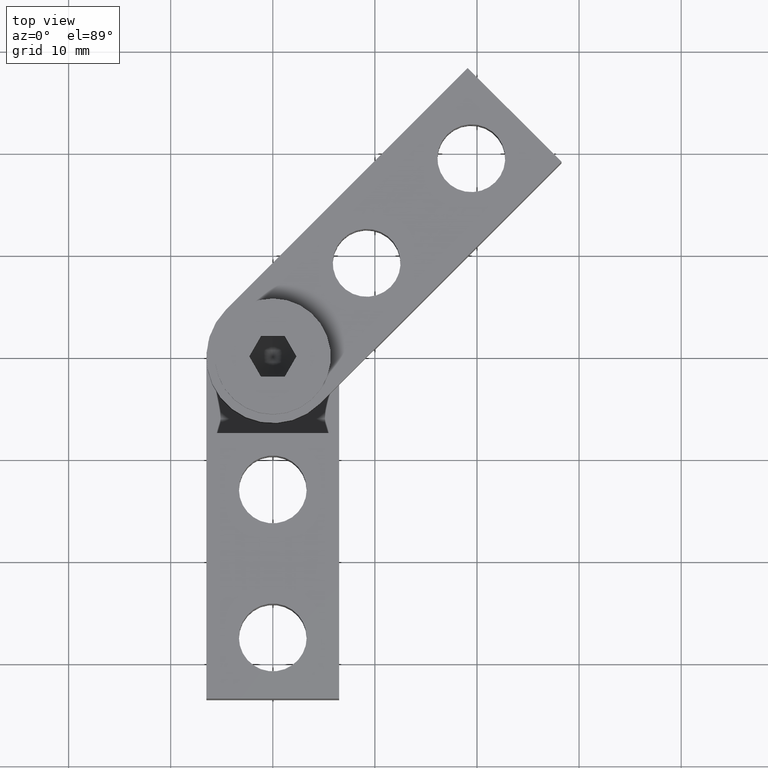
[diagram: clean part render]
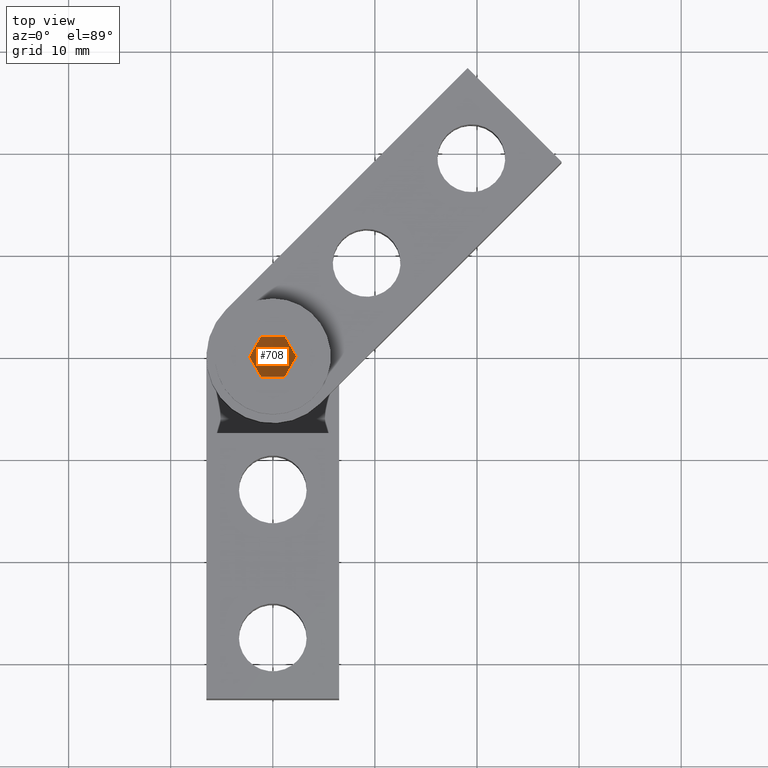
[diagram: same view with one face highlighted and labeled with its STEP entity id]
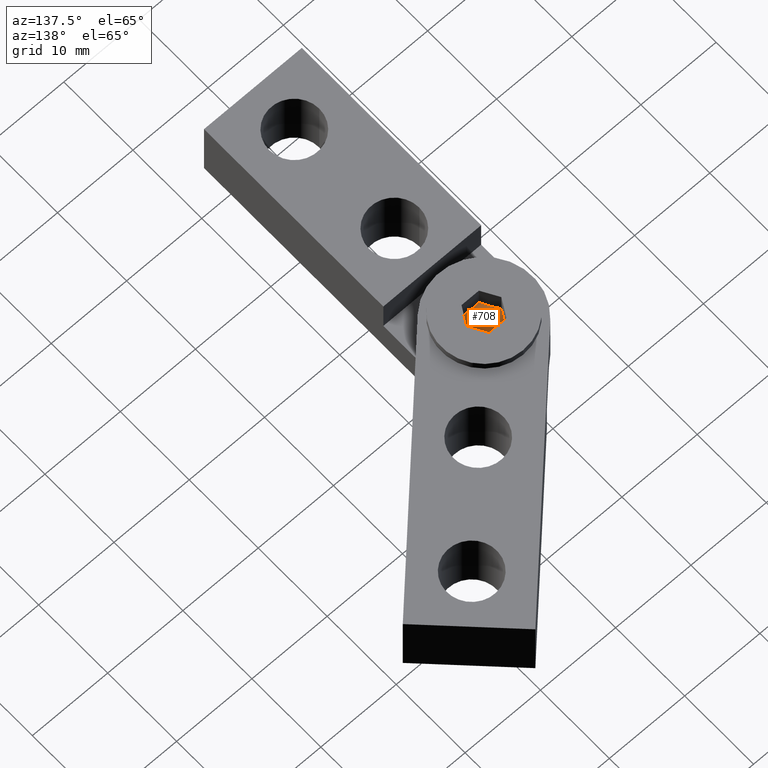
[diagram: same view with one face highlighted and labeled with its STEP entity id]
A machine part, top view. The second image highlights one B-rep face of the part: STEP entity #708.
A second angle (auxiliary view) of the same face is appended — the face is thin or edge-on in the first view.
In plain terms, the highlighted conical surface has half-angle 60 deg.
Its self-contained STEP definition (entity closure, byte-faithful):
#23=(
BOUNDED_CURVE()
B_SPLINE_CURVE(2,(#1227,#1228,#1229),.UNSPECIFIED.,.F.,.F.)
B_SPLINE_CURVE_WITH_KNOTS((3,3),(0.,0.116843613807792),.UNSPECIFIED.)
CURVE()
GEOMETRIC_REPRESENTATION_ITEM()
RATIONAL_B_SPLINE_CURVE((1.,1.07735026918962,1.07735026918962))
REPRESENTATION_ITEM('')
);
#24=(
BOUNDED_CURVE()
B_SPLINE_CURVE(2,(#1236,#1237,#1238),.UNSPECIFIED.,.F.,.F.)
B_SPLINE_CURVE_WITH_KNOTS((3,3),(0.116843613807792,0.233687227615584),
 .UNSPECIFIED.)
CURVE()
GEOMETRIC_REPRESENTATION_ITEM()
RATIONAL_B_SPLINE_CURVE((1.07735026918962,1.07735026918962,1.))
REPRESENTATION_ITEM('')
);
#25=(
BOUNDED_CURVE()
B_SPLINE_CURVE(2,(#1241,#1242,#1243),.UNSPECIFIED.,.F.,.F.)
B_SPLINE_CURVE_WITH_KNOTS((3,3),(0.,0.233687227615584),.UNSPECIFIED.)
CURVE()
GEOMETRIC_REPRESENTATION_ITEM()
RATIONAL_B_SPLINE_CURVE((1.,1.15470053837925,1.))
REPRESENTATION_ITEM('')
);
#26=(
BOUNDED_CURVE()
B_SPLINE_CURVE(2,(#1249,#1250,#1251),.UNSPECIFIED.,.F.,.F.)
B_SPLINE_CURVE_WITH_KNOTS((3,3),(0.,0.233687227615584),.UNSPECIFIED.)
CURVE()
GEOMETRIC_REPRESENTATION_ITEM()
RATIONAL_B_SPLINE_CURVE((1.,1.15470053837925,1.))
REPRESENTATION_ITEM('')
);
#27=(
BOUNDED_CURVE()
B_SPLINE_CURVE(2,(#1257,#1258,#1259),.UNSPECIFIED.,.F.,.F.)
B_SPLINE_CURVE_WITH_KNOTS((3,3),(0.,0.233687227615584),.UNSPECIFIED.)
CURVE()
GEOMETRIC_REPRESENTATION_ITEM()
RATIONAL_B_SPLINE_CURVE((1.,1.15470053837925,1.))
REPRESENTATION_ITEM('')
);
#28=(
BOUNDED_CURVE()
B_SPLINE_CURVE(2,(#1265,#1266,#1267),.UNSPECIFIED.,.F.,.F.)
B_SPLINE_CURVE_WITH_KNOTS((3,3),(0.,0.233687227615584),.UNSPECIFIED.)
CURVE()
GEOMETRIC_REPRESENTATION_ITEM()
RATIONAL_B_SPLINE_CURVE((1.,1.15470053837925,1.))
REPRESENTATION_ITEM('')
);
#29=(
BOUNDED_CURVE()
B_SPLINE_CURVE(2,(#1272,#1273,#1274),.UNSPECIFIED.,.F.,.F.)
B_SPLINE_CURVE_WITH_KNOTS((3,3),(0.,0.233687227615584),.UNSPECIFIED.)
CURVE()
GEOMETRIC_REPRESENTATION_ITEM()
RATIONAL_B_SPLINE_CURVE((1.,1.15470053837925,1.))
REPRESENTATION_ITEM('')
);
#32=CONICAL_SURFACE('',#856,1.15470053837925,1.0471975511966);
#113=FACE_OUTER_BOUND('',#161,.T.);
#161=EDGE_LOOP('',(#637,#638,#639,#640,#641,#642,#643,#644,#645));
#219=LINE('',#1278,#275);
#275=VECTOR('',#1052,1.15470053837925);
#360=VERTEX_POINT('',#1225);
#361=VERTEX_POINT('',#1226);
#364=VERTEX_POINT('',#1234);
#365=VERTEX_POINT('',#1240);
#367=VERTEX_POINT('',#1248);
#369=VERTEX_POINT('',#1256);
#371=VERTEX_POINT('',#1264);
#373=VERTEX_POINT('',#1277);
#448=EDGE_CURVE('',#360,#361,#23,.T.);
#452=EDGE_CURVE('',#361,#364,#24,.T.);
#453=EDGE_CURVE('',#365,#360,#25,.T.);
#456=EDGE_CURVE('',#367,#365,#26,.T.);
#459=EDGE_CURVE('',#369,#367,#27,.T.);
#462=EDGE_CURVE('',#364,#371,#28,.T.);
#465=EDGE_CURVE('',#371,#369,#29,.T.);
#467=EDGE_CURVE('',#373,#361,#219,.T.);
#637=ORIENTED_EDGE('',*,*,#467,.T.);
#638=ORIENTED_EDGE('',*,*,#452,.T.);
#639=ORIENTED_EDGE('',*,*,#462,.T.);
#640=ORIENTED_EDGE('',*,*,#465,.T.);
#641=ORIENTED_EDGE('',*,*,#459,.T.);
#642=ORIENTED_EDGE('',*,*,#456,.T.);
#643=ORIENTED_EDGE('',*,*,#453,.T.);
#644=ORIENTED_EDGE('',*,*,#448,.T.);
#645=ORIENTED_EDGE('',*,*,#467,.F.);
#708=ADVANCED_FACE('',(#113),#32,.F.);
#856=AXIS2_PLACEMENT_3D('',#1276,#1050,#1051);
#1050=DIRECTION('center_axis',(-1.,4.72825858056173E-21,0.));
#1051=DIRECTION('ref_axis',(0.,1.,0.));
#1052=DIRECTION('',(-0.5,-0.866025403784438,-1.06057523872491E-16));
#1225=CARTESIAN_POINT('',(2.67,-2.,-1.15470053837925));
#1226=CARTESIAN_POINT('',(2.84863279495408,-2.,-2.5127875463765E-16));
#1227=CARTESIAN_POINT('Ctrl Pts',(2.67,-2.,-1.15470053837925));
#1228=CARTESIAN_POINT('Ctrl Pts',(2.84863279495408,-2.,-0.535898384862248));
#1229=CARTESIAN_POINT('Ctrl Pts',(2.84863279495408,-2.,-2.5762814944583E-16));
#1234=CARTESIAN_POINT('',(2.67,-2.,1.15470053837925));
#1236=CARTESIAN_POINT('Ctrl Pts',(2.84863279495408,-2.,-2.5762814944583E-16));
#1237=CARTESIAN_POINT('Ctrl Pts',(2.84863279495408,-2.,0.535898384862248));
#1238=CARTESIAN_POINT('Ctrl Pts',(2.67,-2.,1.15470053837925));
#1240=CARTESIAN_POINT('',(2.67,-1.52655665885959E-15,-2.3094010767585));
#1241=CARTESIAN_POINT('Ctrl Pts',(2.67,1.52652830506897E-15,-2.3094010767585));
#1242=CARTESIAN_POINT('Ctrl Pts',(3.00333333333334,-1.,-1.73205080756888));
#1243=CARTESIAN_POINT('Ctrl Pts',(2.67,-2.,-1.15470053837925));
#1248=CARTESIAN_POINT('',(2.67,2.,-1.15470053837925));
#1249=CARTESIAN_POINT('Ctrl Pts',(2.67,2.,-1.15470053837925));
#1250=CARTESIAN_POINT('Ctrl Pts',(3.00333333333334,0.999999999999999,-1.73205080756888));
#1251=CARTESIAN_POINT('Ctrl Pts',(2.67,-2.91436379343166E-15,-2.3094010767585));
#1256=CARTESIAN_POINT('',(2.67,2.,1.15470053837925));
#1257=CARTESIAN_POINT('Ctrl Pts',(2.67,2.,1.15470053837925));
#1258=CARTESIAN_POINT('Ctrl Pts',(3.00333333333334,2.,-7.63278329429795E-16));
#1259=CARTESIAN_POINT('Ctrl Pts',(2.67,2.,-1.15470053837926));
#1264=CARTESIAN_POINT('',(2.67,-1.38777878078145E-16,2.3094010767585));
#1265=CARTESIAN_POINT('Ctrl Pts',(2.67,-2.,1.15470053837925));
#1266=CARTESIAN_POINT('Ctrl Pts',(3.00333333333334,-1.,1.73205080756888));
#1267=CARTESIAN_POINT('Ctrl Pts',(2.67,1.24897254891268E-15,2.3094010767585));
#1272=CARTESIAN_POINT('Ctrl Pts',(2.67,-1.11025137841578E-15,2.3094010767585));
#1273=CARTESIAN_POINT('Ctrl Pts',(3.00333333333334,1.,1.73205080756888));
#1274=CARTESIAN_POINT('Ctrl Pts',(2.67,2.,1.15470053837925));
#1276=CARTESIAN_POINT('Origin',(3.33666666666667,3.15059630081804E-20,0.));
#1277=CARTESIAN_POINT('',(4.00333333333334,2.83537906211393E-20,0.));
#1278=CARTESIAN_POINT('',(3.33666666666667,-1.15470053837925,-1.41410031829988E-16));